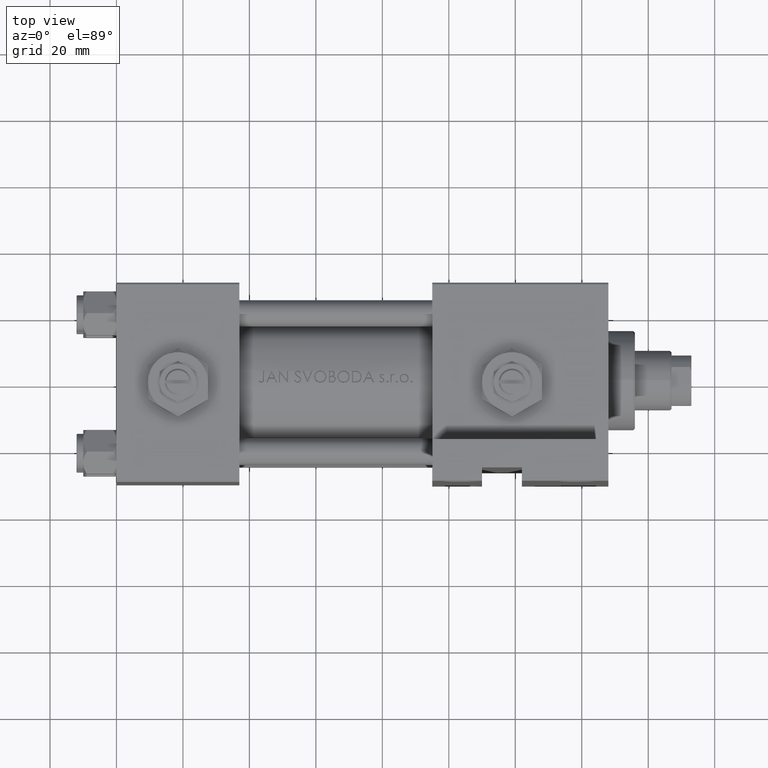
[diagram: clean part render]
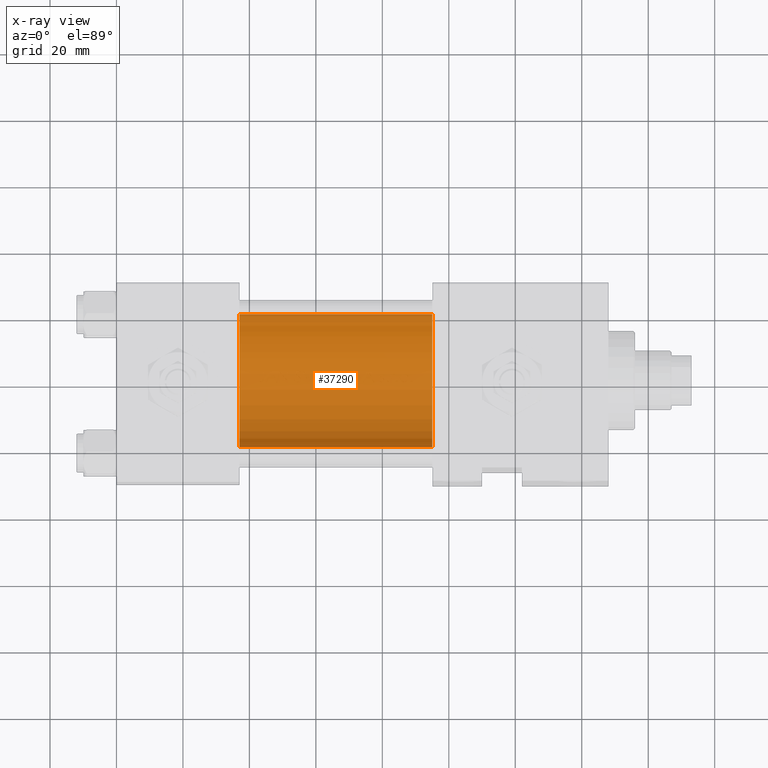
[diagram: x-ray — body ghosted, one internal face saturated and labeled with its STEP entity id]
A machine part, top view, then the same camera in x-ray: the body is ghosted and one INTERNAL B-rep face — a face not visible from any outside direction — is saturated and labeled: STEP entity #37290.
In plain terms, the highlighted cylindrical surface (partial cylindrical patch) has radius 20 mm, axis along (-1, -0, 0).
Its self-contained STEP definition (entity closure, byte-faithful):
#573 = VERTEX_POINT ( 'NONE', #46224 ) ;
#1726 = CARTESIAN_POINT ( 'NONE',  ( 95.00000000000000000, 2.326828918379970576E-15, -19.00000000000000000 ) ) ;
#2296 = DIRECTION ( 'NONE',  ( -1.000000000000000000, -0.000000000000000000, -0.000000000000000000 ) ) ;
#2646 = ORIENTED_EDGE ( 'NONE', *, *, #3997, .T. ) ;
#3997 = EDGE_CURVE ( 'NONE', #8983, #29064, #15447, .T. ) ;
#6751 = CARTESIAN_POINT ( 'NONE',  ( 37.00000000000000000, -1.224646799147354686E-16, 1.000000000000000888 ) ) ;
#8489 = AXIS2_PLACEMENT_3D ( 'NONE', #29226, #2296, #36676 ) ;
#8983 = VERTEX_POINT ( 'NONE', #1726 ) ;
#9720 = FACE_OUTER_BOUND ( 'NONE', #22214, .T. ) ;
#11656 = CARTESIAN_POINT ( 'NONE',  ( 95.00000000000000000, -1.224646799147354686E-16, 21.00000000000000000 ) ) ;
#11873 = ORIENTED_EDGE ( 'NONE', *, *, #32104, .F. ) ;
#12288 = CARTESIAN_POINT ( 'NONE',  ( 37.00000000000000000, -1.224646799147354686E-16, 21.00000000000000000 ) ) ;
#13682 = EDGE_CURVE ( 'NONE', #29064, #22121, #31158, .T. ) ;
#14402 = LINE ( 'NONE', #29803, #44612 ) ;
#15447 = CIRCLE ( 'NONE', #36787, 20.00000000000000000 ) ;
#18273 = DIRECTION ( 'NONE',  ( 1.000000000000000000, 0.000000000000000000, 0.000000000000000000 ) ) ;
#22121 = VERTEX_POINT ( 'NONE', #12288 ) ;
#22214 = EDGE_LOOP ( 'NONE', ( #28260, #2646, #49867, #11873 ) ) ;
#27315 = DIRECTION ( 'NONE',  ( -1.000000000000000000, -0.000000000000000000, -0.000000000000000000 ) ) ;
#28260 = ORIENTED_EDGE ( 'NONE', *, *, #38374, .F. ) ;
#29064 = VERTEX_POINT ( 'NONE', #41935 ) ;
#29226 = CARTESIAN_POINT ( 'NONE',  ( 95.00000000000000000, -1.224646799147354686E-16, 1.000000000000000888 ) ) ;
#29712 = AXIS2_PLACEMENT_3D ( 'NONE', #6751, #31277, #38061 ) ;
#29803 = CARTESIAN_POINT ( 'NONE',  ( 95.00000000000000000, 2.326828918379970576E-15, -19.00000000000000000 ) ) ;
#31158 = LINE ( 'NONE', #11656, #50127 ) ;
#31277 = DIRECTION ( 'NONE',  ( 1.000000000000000000, 0.000000000000000000, 0.000000000000000000 ) ) ;
#32104 = EDGE_CURVE ( 'NONE', #573, #22121, #42833, .T. ) ;
#33935 = DIRECTION ( 'NONE',  ( 0.000000000000000000, 0.000000000000000000, -1.000000000000000000 ) ) ;
#36676 = DIRECTION ( 'NONE',  ( 0.000000000000000000, 0.000000000000000000, 1.000000000000000000 ) ) ;
#36787 = AXIS2_PLACEMENT_3D ( 'NONE', #37786, #18273, #33935 ) ;
#37290 = ADVANCED_FACE ( 'NONE', ( #9720 ), #44401, .F. ) ;
#37786 = CARTESIAN_POINT ( 'NONE',  ( 95.00000000000000000, -1.224646799147354686E-16, 1.000000000000000888 ) ) ;
#38061 = DIRECTION ( 'NONE',  ( 0.000000000000000000, 0.000000000000000000, -1.000000000000000000 ) ) ;
#38374 = EDGE_CURVE ( 'NONE', #8983, #573, #14402, .T. ) ;
#41935 = CARTESIAN_POINT ( 'NONE',  ( 95.00000000000000000, -1.224646799147354686E-16, 21.00000000000000000 ) ) ;
#42833 = CIRCLE ( 'NONE', #29712, 20.00000000000000000 ) ;
#44401 = CYLINDRICAL_SURFACE ( 'NONE', #8489, 20.00000000000000000 ) ;
#44612 = VECTOR ( 'NONE', #45227, 1000.000000000000000 ) ;
#45227 = DIRECTION ( 'NONE',  ( -1.000000000000000000, -0.000000000000000000, -0.000000000000000000 ) ) ;
#46224 = CARTESIAN_POINT ( 'NONE',  ( 37.00000000000000000, 2.326828918379970576E-15, -19.00000000000000000 ) ) ;
#49867 = ORIENTED_EDGE ( 'NONE', *, *, #13682, .T. ) ;
#50127 = VECTOR ( 'NONE', #27315, 1000.000000000000000 ) ;